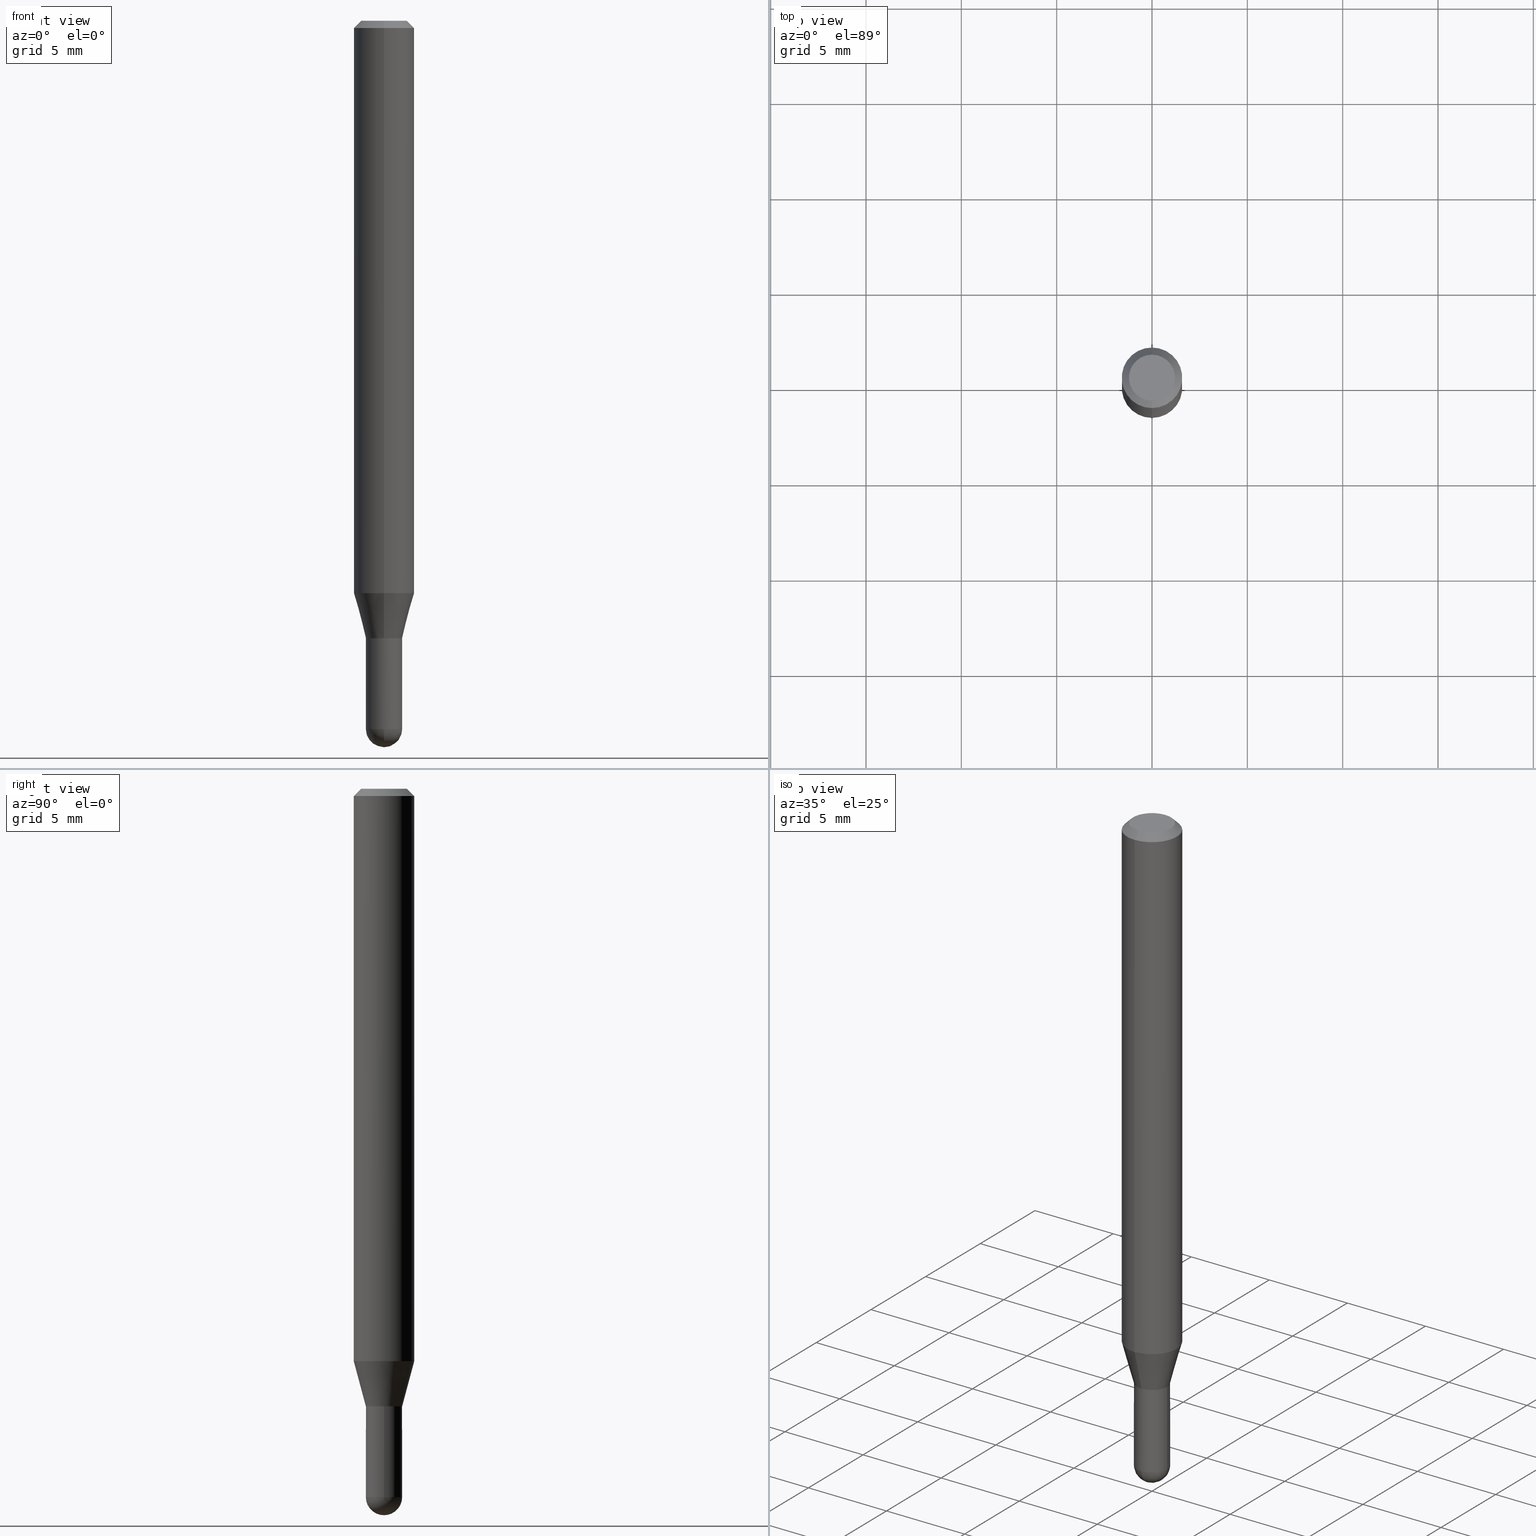
[diagram: canonical four-view strip — front | top / right | iso, engineering-drawing reading convention]
A machine part, canonical four-view strip (front | top / right | iso — engineering-drawing reading convention). The complete STEP part file that produces these views, byte-faithful:
ISO-10303-21;
HEADER;
FILE_DESCRIPTION (( 'STEP AP203' ),
    '1' );
FILE_NAME ('01487.STEP',
    '2024-03-07T21:35:48',
    ( '' ),
    ( '' ),
    'SwSTEP 2.0',
    'SolidWorks 2023',
    '' );
FILE_SCHEMA (( 'CONFIG_CONTROL_DESIGN' ));
ENDSEC;

DATA;
#1 = ORIENTED_EDGE ( 'NONE', *, *, #110, .T. ) ;
#2 = EDGE_CURVE ( 'NONE', #95, #86, #20, .T. ) ;
#3 = AXIS2_PLACEMENT_3D ( 'NONE', #383, #27, #183 ) ;
#4 = AXIS2_PLACEMENT_3D ( 'NONE', #172, #415, #341 ) ;
#5 = VERTEX_POINT ( 'NONE', #68 ) ;
#6 = COORDINATED_UNIVERSAL_TIME_OFFSET ( 5, 0, .BEHIND. ) ;
#7 = APPLICATION_CONTEXT ( 'configuration controlled 3d designs of mechanical parts and assemblies' ) ;
#8 = DIRECTION ( 'NONE',  ( -2.445363330842566879E-29, 3.491632385536988923E-15, 1.000000000000000000 ) ) ;
#9 = ORIENTED_EDGE ( 'NONE', *, *, #436, .T. ) ;
#10 = CYLINDRICAL_SURFACE ( 'NONE', #400, 0.03749999999999991535 ) ;
#11 = EDGE_LOOP ( 'NONE', ( #362, #1, #237, #118 ) ) ;
#12 = AXIS2_PLACEMENT_3D ( 'NONE', #194, #228, #355 ) ;
#13 = PRODUCT_RELATED_PRODUCT_CATEGORY ( 'detail', '', ( #202 ) ) ;
#14 = ORIENTED_EDGE ( 'NONE', *, *, #339, .T. ) ;
#15 = FACE_OUTER_BOUND ( 'NONE', #323, .T. ) ;
#16 = DIRECTION ( 'NONE',  ( -6.982962677686265922E-15, -1.000000000000000000, 3.483106191921935554E-15 ) ) ;
#17 = ORIENTED_EDGE ( 'NONE', *, *, #422, .T. ) ;
#18 = CC_DESIGN_PERSON_AND_ORGANIZATION_ASSIGNMENT ( #198, #473, ( #193 ) ) ;
#19 = DIRECTION ( 'NONE',  ( 1.000000000000000000, -6.982962677686268288E-15, 0.000000000000000000 ) ) ;
#20 = CIRCLE ( 'NONE', #343, 0.03749999999999999861 ) ;
#21 = CIRCLE ( 'NONE', #241, 0.06250000000000000000 ) ;
#22 = CARTESIAN_POINT ( 'NONE',  ( 4.364351673553919652E-16, 0.06249999999999995143, -0.01500000000000022669 ) ) ;
#23 = CARTESIAN_POINT ( 'NONE',  ( 3.576498129045762161E-29, -5.106291458058100676E-15, -1.462500000000000133 ) ) ;
#24 = CARTESIAN_POINT ( 'NONE',  ( 3.576498129045762161E-29, -5.106291458058100676E-15, -1.462500000000000133 ) ) ;
#25 = DIRECTION ( 'NONE',  ( -2.445468806185136597E-29, 3.491481338843145583E-15, 1.000000000000000000 ) ) ;
#26 = EDGE_CURVE ( 'NONE', #5, #288, #412, .T. ) ;
#27 = DIRECTION ( 'NONE',  ( -2.445363330842566879E-29, 3.491632385536988923E-15, 1.000000000000000000 ) ) ;
#28 = DIRECTION ( 'NONE',  ( -6.982962677686265922E-15, -1.000000000000000000, 4.370956789862821150E-15 ) ) ;
#29 = CIRCLE ( 'NONE', #318, 0.03749999999999991535 ) ;
#30 = CARTESIAN_POINT ( 'NONE',  ( 3.316907271900976096E-16, 0.04749999999999999362, -1.702791107499437497E-16 ) ) ;
#31 = CIRCLE ( 'NONE', #328, 0.03749999999999999861 ) ;
#32 = SECURITY_CLASSIFICATION ( '', '', #443 ) ;
#33 = DIRECTION ( 'NONE',  ( -2.445363330842566879E-29, 3.491632385536988923E-15, 1.000000000000000000 ) ) ;
#34 = CARTESIAN_POINT ( 'NONE',  ( 2.889682741982522201E-29, -4.126057554955246622E-15, -1.181698729810781057 ) ) ;
#35 = LINE ( 'NONE', #223, #352 ) ;
#36 = PLANE ( 'NONE',  #184 ) ;
#37 = ADVANCED_FACE ( 'NONE', ( #214 ), #175, .T. ) ;
#38 = LINE ( 'NONE', #351, #88 ) ;
#39 = CARTESIAN_POINT ( 'NONE',  ( 3.552713678800798922E-16, 0.03749999999999546058, -1.275000000000000133 ) ) ;
#40 = AXIS2_PLACEMENT_3D ( 'NONE', #24, #130, #66 ) ;
#41 = AXIS2_PLACEMENT_3D ( 'NONE', #273, #426, #100 ) ;
#42 = CYLINDRICAL_SURFACE ( 'NONE', #334, 0.03749999999999991535 ) ;
#43 = CARTESIAN_POINT ( 'NONE',  ( 3.117838246824272799E-29, -4.451831291559661005E-15, -1.275000000000000133 ) ) ;
#44 = DIRECTION ( 'NONE',  ( -2.445468806185136877E-29, 3.491481338843145188E-15, 1.000000000000000000 ) ) ;
#45 = EDGE_CURVE ( 'NONE', #86, #401, #138, .T. ) ;
#46 = DIRECTION ( 'NONE',  ( -1.807323732225379443E-15, -0.2588190451025252359, 0.9659258262890670910 ) ) ;
#47 = VERTEX_POINT ( 'NONE', #495 ) ;
#48 = APPROVAL_STATUS ( 'not_yet_approved' ) ;
#49 = AXIS2_PLACEMENT_3D ( 'NONE', #380, #56, #453 ) ;
#50 = VERTEX_POINT ( 'NONE', #179 ) ;
#51 = PERSON_AND_ORGANIZATION_ROLE ( 'creator' ) ;
#52 = EDGE_LOOP ( 'NONE', ( #247, #455, #101, #321 ) ) ;
#53 = PERSON ( 'UNSPECIFIED', 'UNSPECIFIED', 'UNSPECIFIED', ('UNSPECIFIED'), ('UNSPECIFIED'), ('UNSPECIFIED') ) ;
#54 = ORIENTED_EDGE ( 'NONE', *, *, #45, .T. ) ;
#55 = ORIENTED_EDGE ( 'NONE', *, *, #144, .F. ) ;
#56 = DIRECTION ( 'NONE',  ( -2.445468806185136597E-29, 3.491481338843145583E-15, 1.000000000000000000 ) ) ;
#57 = ADVANCED_FACE ( 'NONE', ( #15 ), #420, .F. ) ;
#58 = EDGE_LOOP ( 'NONE', ( #444, #9, #136, #452 ) ) ;
#59 = DIRECTION ( 'NONE',  ( 6.982962677686265922E-15, 1.000000000000000000, -3.483106191921935554E-15 ) ) ;
#60 = DIRECTION ( 'NONE',  ( -2.445468806185136597E-29, 3.491481338843145583E-15, 1.000000000000000000 ) ) ;
#61 = DIRECTION ( 'NONE',  ( -6.982962677686265133E-15, -1.000000000000000000, 0.000000000000000000 ) ) ;
#62 = AXIS2_PLACEMENT_3D ( 'NONE', #441, #243, #205 ) ;
#63 = DIRECTION ( 'NONE',  ( 4.937700262164548042E-15, 0.7071067811865451302, -0.7071067811865499042 ) ) ;
#64 = CC_DESIGN_APPROVAL ( #467, ( #32 ) ) ;
#65 = ADVANCED_FACE ( 'NONE', ( #456 ), #408, .T. ) ;
#66 = DIRECTION ( 'NONE',  ( 1.000000000000000000, -6.982962677686268288E-15, 0.000000000000000000 ) ) ;
#67 = DIRECTION ( 'NONE',  ( -2.445363330842566879E-29, 3.491632385536988923E-15, 1.000000000000000000 ) ) ;
#68 = CARTESIAN_POINT ( 'NONE',  ( 3.840629472727447874E-16, 0.04749999999999999362, -1.747056831868805136E-16 ) ) ;
#69 = DIRECTION ( 'NONE',  ( -6.982962677686265133E-15, -1.000000000000000000, 0.000000000000000000 ) ) ;
#70 = AXIS2_PLACEMENT_3D ( 'NONE', #73, #33, #462 ) ;
#71 = EDGE_CURVE ( 'NONE', #401, #409, #374, .T. ) ;
#72 = FACE_OUTER_BOUND ( 'NONE', #153, .T. ) ;
#73 = CARTESIAN_POINT ( 'NONE',  ( 3.668044996263852701E-31, -5.237448578305486515E-17, -0.01500000000000000812 ) ) ;
#74 = DIRECTION ( 'NONE',  ( 2.445363330842566599E-29, -3.491632385536988923E-15, -1.000000000000000000 ) ) ;
#75 = VERTEX_POINT ( 'NONE', #299 ) ;
#76 = CIRCLE ( 'NONE', #410, 0.03749999999999992228 ) ;
#77 = EDGE_CURVE ( 'NONE', #264, #50, #123, .T. ) ;
#78 = APPLICATION_PROTOCOL_DEFINITION ( 'international standard', 'config_control_design', 1994, #437 ) ;
#79 = DATE_TIME_ROLE ( 'creation_date' ) ;
#80 = VERTEX_POINT ( 'NONE', #133 ) ;
#81 = AXIS2_PLACEMENT_3D ( 'NONE', #90, #213, #59 ) ;
#82 = ORIENTED_EDGE ( 'NONE', *, *, #26, .F. ) ;
#83 = ADVANCED_FACE ( 'NONE', ( #222 ), #431, .T. ) ;
#84 = EDGE_LOOP ( 'NONE', ( #212, #398, #429, #91, #182 ) ) ;
#85 = DIRECTION ( 'NONE',  ( -2.445363330842566879E-29, 3.491632385536988923E-15, 1.000000000000000000 ) ) ;
#86 = VERTEX_POINT ( 'NONE', #146 ) ;
#87 = CIRCLE ( 'NONE', #417, 0.06250000000000000000 ) ;
#88 = VECTOR ( 'NONE', #508, 39.37007874015748143 ) ;
#89 = ADVANCED_FACE ( 'NONE', ( #111 ), #371, .T. ) ;
#90 = CARTESIAN_POINT ( 'NONE',  ( 3.668044996263852701E-31, -5.237448578305486515E-17, -0.01500000000000000812 ) ) ;
#91 = ORIENTED_EDGE ( 'NONE', *, *, #71, .F. ) ;
#92 = CARTESIAN_POINT ( 'NONE',  ( 3.668044996263852701E-31, -5.237448578305486515E-17, -0.01500000000000000812 ) ) ;
#93 = CARTESIAN_POINT ( 'NONE',  ( 3.573291255461339313E-29, -5.110883883554903875E-15, -1.462500000000000133 ) ) ;
#94 = DIRECTION ( 'NONE',  ( -2.445468806185136597E-29, 3.491481338843145583E-15, 1.000000000000000000 ) ) ;
#95 = VERTEX_POINT ( 'NONE', #502 ) ;
#96 = CIRCLE ( 'NONE', #62, 0.03749999999999991535 ) ;
#97 = CONICAL_SURFACE ( 'NONE', #4, 0.03749999999999991535, 0.2617993877991575680 ) ;
#98 = ORIENTED_EDGE ( 'NONE', *, *, #2, .T. ) ;
#99 = LOCAL_TIME ( 16, 35, 48.00000000000000000, #253 ) ;
#100 = DIRECTION ( 'NONE',  ( -6.982962677686265922E-15, -1.000000000000000000, 3.491632385536988923E-15 ) ) ;
#101 = ORIENTED_EDGE ( 'NONE', *, *, #331, .F. ) ;
#102 = CARTESIAN_POINT ( 'NONE',  ( -2.618611004132032007E-16, -0.03750000000000437012, -1.275000000000000133 ) ) ;
#103 = LINE ( 'NONE', #466, #500 ) ;
#104 = CC_DESIGN_PERSON_AND_ORGANIZATION_ASSIGNMENT ( #358, #512, ( #202 ) ) ;
#105 = VECTOR ( 'NONE', #292, 39.37007874015748143 ) ;
#106 = FACE_OUTER_BOUND ( 'NONE', #372, .T. ) ;
#107 = DIRECTION ( 'NONE',  ( -2.445363330842566879E-29, 3.491632385536988923E-15, 1.000000000000000000 ) ) ;
#108 = CARTESIAN_POINT ( 'NONE',  ( 2.164915583720718990E-46, -3.091192735546762103E-32, -8.853144873873535665E-18 ) ) ;
#109 = DIRECTION ( 'NONE',  ( 1.000000000000000000, -7.105427357601001070E-15, 4.926315508542082329E-29 ) ) ;
#110 = EDGE_CURVE ( 'NONE', #50, #264, #149, .T. ) ;
#111 = FACE_OUTER_BOUND ( 'NONE', #510, .T. ) ;
#112 = AXIS2_PLACEMENT_3D ( 'NONE', #93, #220, #486 ) ;
#113 = AXIS2_PLACEMENT_3D ( 'NONE', #504, #145, #232 ) ;
#114 = CARTESIAN_POINT ( 'NONE',  ( 0.000000000000000000, 0.000000000000000000, 0.000000000000000000 ) ) ;
#115 = LINE ( 'NONE', #235, #156 ) ;
#116 = ORIENTED_EDGE ( 'NONE', *, *, #246, .T. ) ;
#117 = PERSON_AND_ORGANIZATION ( #53, #124 ) ;
#118 = ORIENTED_EDGE ( 'NONE', *, *, #474, .F. ) ;
#119 = APPROVAL_DATE_TIME ( #476, #256 ) ;
#120 = CC_DESIGN_PERSON_AND_ORGANIZATION_ASSIGNMENT ( #231, #391, ( #32 ) ) ;
#121 = ORIENTED_EDGE ( 'NONE', *, *, #110, .F. ) ;
#122 = PERSON_AND_ORGANIZATION ( #53, #124 ) ;
#123 = CIRCLE ( 'NONE', #386, 0.03699999999999999817 ) ;
#124 = ORGANIZATION ( 'UNSPECIFIED', 'UNSPECIFIED', '' ) ;
#125 = CARTESIAN_POINT ( 'NONE',  ( 0.000000000000000000, 0.000000000000000000, 0.000000000000000000 ) ) ;
#126 = ORIENTED_EDGE ( 'NONE', *, *, #224, .F. ) ;
#127 = DIRECTION ( 'NONE',  ( -2.445363330842566879E-29, 3.491632385536988923E-15, 1.000000000000000000 ) ) ;
#128 = ORIENTED_EDGE ( 'NONE', *, *, #26, .T. ) ;
#129 = FACE_OUTER_BOUND ( 'NONE', #342, .T. ) ;
#130 = DIRECTION ( 'NONE',  ( -2.445468806185136597E-29, 3.491481338843145583E-15, 1.000000000000000000 ) ) ;
#131 = AXIS2_PLACEMENT_3D ( 'NONE', #108, #345, #501 ) ;
#132 = CC_DESIGN_SECURITY_CLASSIFICATION ( #32, ( #301 ) ) ;
#133 = CARTESIAN_POINT ( 'NONE',  ( 2.664535259100738967E-16, 0.03749999999999498179, -1.462500000000000133 ) ) ;
#134 = DIRECTION ( 'NONE',  ( -2.445363330842566879E-29, 3.491632385536988923E-15, 1.000000000000000000 ) ) ;
#135 = CARTESIAN_POINT ( 'NONE',  ( 0.03749999999999999861, -2.618611004132350016E-16, 1.828566290923475922E-30 ) ) ;
#136 = ORIENTED_EDGE ( 'NONE', *, *, #474, .T. ) ;
#137 = CYLINDRICAL_SURFACE ( 'NONE', #49, 0.03749999999999999861 ) ;
#138 = CIRCLE ( 'NONE', #40, 0.03749999999999999861 ) ;
#139 = AXIS2_PLACEMENT_3D ( 'NONE', #291, #134, #411 ) ;
#140 = ORIENTED_EDGE ( 'NONE', *, *, #272, .T. ) ;
#141 = DIRECTION ( 'NONE',  ( -2.445363330842566879E-29, 3.491632385536988923E-15, 1.000000000000000000 ) ) ;
#142 = CARTESIAN_POINT ( 'NONE',  ( -2.618611004132344100E-16, -0.03749999999999991535, 1.309362144576368085E-16 ) ) ;
#143 = VERTEX_POINT ( 'NONE', #39 ) ;
#144 = EDGE_CURVE ( 'NONE', #216, #80, #218, .T. ) ;
#145 = DIRECTION ( 'NONE',  ( 1.000000000000000000, -6.982962677686265922E-15, 4.883557194083112901E-29 ) ) ;
#146 = CARTESIAN_POINT ( 'NONE',  ( -2.618611004131998480E-16, -0.03750000000000520278, -1.462500000000000133 ) ) ;
#147 = VERTEX_POINT ( 'NONE', #314 ) ;
#148 = CARTESIAN_POINT ( 'NONE',  ( 2.664535259100369189E-16, 0.03749999999999991535, -1.309362144576368085E-16 ) ) ;
#149 = CIRCLE ( 'NONE', #439, 0.03699999999999999817 ) ;
#150 = CARTESIAN_POINT ( 'NONE',  ( 3.668044996263852701E-31, -5.237448578305486515E-17, -0.01500000000000000812 ) ) ;
#151 = CARTESIAN_POINT ( 'NONE',  ( 0.03749999999999999861, -5.040826182954790742E-15, -1.462500000000000133 ) ) ;
#152 = ADVANCED_FACE ( 'NONE', ( #106 ), #36, .F. ) ;
#153 = EDGE_LOOP ( 'NONE', ( #274, #329, #295, #313 ) ) ;
#154 = DIRECTION ( 'NONE',  ( -2.445363330842566879E-29, 3.491632385536988923E-15, 1.000000000000000000 ) ) ;
#155 = ORIENTED_EDGE ( 'NONE', *, *, #278, .F. ) ;
#156 = VECTOR ( 'NONE', #46, 39.37007874015748143 ) ;
#157 = VERTEX_POINT ( 'NONE', #192 ) ;
#158 = CIRCLE ( 'NONE', #360, 0.03749999999999999861 ) ;
#159 = CALENDAR_DATE ( 2024, 7, 3 ) ;
#160 = ORIENTED_EDGE ( 'NONE', *, *, #45, .F. ) ;
#161 = EDGE_CURVE ( 'NONE', #434, #464, #311, .T. ) ;
#162 = SHAPE_DEFINITION_REPRESENTATION ( #261, #315 ) ;
#163 = DIRECTION ( 'NONE',  ( -6.982962677686265922E-15, -1.000000000000000000, 3.491632385536988923E-15 ) ) ;
#164 = ORIENTED_EDGE ( 'NONE', *, *, #368, .F. ) ;
#165 = COORDINATED_UNIVERSAL_TIME_OFFSET ( 5, 0, .BEHIND. ) ;
#166 = DIRECTION ( 'NONE',  ( -6.982962677686265922E-15, -1.000000000000000000, 4.370956789862821150E-15 ) ) ;
#167 = ORIENTED_EDGE ( 'NONE', *, *, #509, .T. ) ;
#168 = AXIS2_PLACEMENT_3D ( 'NONE', #336, #257, #489 ) ;
#169 = CIRCLE ( 'NONE', #131, 0.04749999999999999362 ) ;
#170 = EDGE_CURVE ( 'NONE', #434, #143, #29, .T. ) ;
#171 = ORIENTED_EDGE ( 'NONE', *, *, #427, .F. ) ;
#172 = CARTESIAN_POINT ( 'NONE',  ( 3.117838246824272799E-29, -4.451831291559661005E-15, -1.275000000000000133 ) ) ;
#173 = DIRECTION ( 'NONE',  ( -6.982962677686265133E-15, -1.000000000000000000, 0.000000000000000000 ) ) ;
#174 = CARTESIAN_POINT ( 'NONE',  ( 4.440892098500915082E-16, 0.06249999999999993755, -0.01500000000000022669 ) ) ;
#175 = SPHERICAL_SURFACE ( 'NONE', #112, 0.03750000000000017902 ) ;
#176 = CLOSED_SHELL ( 'NONE', ( #460, #445, #57, #37, #293 ) ) ;
#177 = VECTOR ( 'NONE', #390, 39.37007874015748143 ) ;
#178 = DIRECTION ( 'NONE',  ( -2.445363330842566599E-29, 3.491632385536988923E-15, 1.000000000000000000 ) ) ;
#179 = CARTESIAN_POINT ( 'NONE',  ( 2.646771690706681720E-16, 0.03699999999999554340, -1.275000000000000133 ) ) ;
#180 = ADVANCED_FACE ( 'NONE', ( #356 ), #506, .T. ) ;
#181 = DIRECTION ( 'NONE',  ( -2.445468806185136597E-29, 3.491481338843145583E-15, 1.000000000000000000 ) ) ;
#182 = ORIENTED_EDGE ( 'NONE', *, *, #379, .T. ) ;
#183 = DIRECTION ( 'NONE',  ( -6.982962677686265133E-15, -1.000000000000000000, 0.000000000000000000 ) ) ;
#184 = AXIS2_PLACEMENT_3D ( 'NONE', #30, #74, #353 ) ;
#185 = DIRECTION ( 'NONE',  ( 5.024295867788190974E-15, 0.7071067811865681119, 0.7071067811865270336 ) ) ;
#186 = CIRCLE ( 'NONE', #226, 0.03749999999999992228 ) ;
#187 = CIRCLE ( 'NONE', #251, 0.03750000000000017902 ) ;
#188 = DIRECTION ( 'NONE',  ( -2.445363330842566879E-29, 3.491632385536988923E-15, 1.000000000000000000 ) ) ;
#189 = EDGE_CURVE ( 'NONE', #75, #288, #385, .T. ) ;
#190 = CARTESIAN_POINT ( 'NONE',  ( 0.03749999999999999861, -4.713499807438246596E-15, -1.275000000000000133 ) ) ;
#191 = DIRECTION ( 'NONE',  ( -1.000000000000000000, 6.982962677686265922E-15, -4.883557194083112340E-29 ) ) ;
#192 = CARTESIAN_POINT ( 'NONE',  ( -4.364351673553630239E-16, -0.06250000000000416334, -1.181698729810780613 ) ) ;
#193 = PRODUCT_DEFINITION ( 'UNKNOWN', '', #301, #396 ) ;
#194 = CARTESIAN_POINT ( 'NONE',  ( 0.000000000000000000, 0.000000000000000000, 0.000000000000000000 ) ) ;
#195 = LOCAL_TIME ( 16, 35, 48.00000000000000000, #435 ) ;
#196 = FACE_OUTER_BOUND ( 'NONE', #84, .T. ) ;
#197 = DIRECTION ( 'NONE',  ( -6.982962677686266711E-15, -1.000000000000000000, 0.000000000000000000 ) ) ;
#198 = PERSON_AND_ORGANIZATION ( #53, #124 ) ;
#199 = FACE_OUTER_BOUND ( 'NONE', #316, .T. ) ;
#200 = EDGE_LOOP ( 'NONE', ( #405, #98, #54, #416, #285 ) ) ;
#201 = EDGE_CURVE ( 'NONE', #157, #75, #87, .T. ) ;
#202 = PRODUCT ( '01487', '01487', '', ( #242 ) ) ;
#203 = CARTESIAN_POINT ( 'NONE',  ( -0.03749999999999999861, 2.664535259100375598E-16, -1.844600658845589808E-30 ) ) ;
#204 = ORIENTED_EDGE ( 'NONE', *, *, #284, .T. ) ;
#205 = DIRECTION ( 'NONE',  ( -6.982962677686266711E-15, -1.000000000000000000, 0.000000000000000000 ) ) ;
#206 = EDGE_LOOP ( 'NONE', ( #305, #140, #17, #82 ) ) ;
#207 = DATE_TIME_ROLE ( 'classification_date' ) ;
#208 = EDGE_CURVE ( 'NONE', #95, #47, #289, .T. ) ;
#209 = ORIENTED_EDGE ( 'NONE', *, *, #77, .F. ) ;
#210 = AXIS2_PLACEMENT_3D ( 'NONE', #150, #468, #424 ) ;
#211 = CONICAL_SURFACE ( 'NONE', #81, 0.06250000000000000000, 0.7853981633974483900 ) ;
#212 = ORIENTED_EDGE ( 'NONE', *, *, #368, .T. ) ;
#213 = DIRECTION ( 'NONE',  ( 2.445363330842566879E-29, -3.491632385536988923E-15, -1.000000000000000000 ) ) ;
#214 = FACE_OUTER_BOUND ( 'NONE', #395, .T. ) ;
#215 = DIRECTION ( 'NONE',  ( -6.982962677686265922E-15, -1.000000000000000000, 3.491632385536988923E-15 ) ) ;
#216 = VERTEX_POINT ( 'NONE', #239 ) ;
#217 = CC_DESIGN_PERSON_AND_ORGANIZATION_ASSIGNMENT ( #122, #287, ( #301 ) ) ;
#218 = CIRCLE ( 'NONE', #498, 0.03750000000000017902 ) ;
#219 = DIRECTION ( 'NONE',  ( -2.445363330842566879E-29, 3.491632385536988923E-15, 1.000000000000000000 ) ) ;
#220 = DIRECTION ( 'NONE',  ( 1.000000000000000000, -6.982962677686265922E-15, 4.883557194083112901E-29 ) ) ;
#221 = CARTESIAN_POINT ( 'NONE',  ( -2.583696190743606373E-16, -0.03700000000000444600, -1.275000000000000133 ) ) ;
#222 = FACE_OUTER_BOUND ( 'NONE', #11, .T. ) ;
#223 = CARTESIAN_POINT ( 'NONE',  ( 2.629008122312681665E-16, 0.03699999999999554340, -1.275000000000000133 ) ) ;
#224 = EDGE_CURVE ( 'NONE', #434, #157, #115, .T. ) ;
#225 =( LENGTH_UNIT ( ) NAMED_UNIT ( * ) SI_UNIT ( $, .METRE. ) );
#226 = AXIS2_PLACEMENT_3D ( 'NONE', #263, #107, #306 ) ;
#227 = DIRECTION ( 'NONE',  ( -2.445363330842566879E-29, 3.491632385536988923E-15, 1.000000000000000000 ) ) ;
#228 = DIRECTION ( 'NONE',  ( -2.445468806185136597E-29, 3.491481338843145583E-15, 1.000000000000000000 ) ) ;
#229 = LINE ( 'NONE', #148, #319 ) ;
#230 = CARTESIAN_POINT ( 'NONE',  ( 3.117838246824272799E-29, -4.451831291559661005E-15, -1.275000000000000133 ) ) ;
#231 = PERSON_AND_ORGANIZATION ( #53, #124 ) ;
#232 = DIRECTION ( 'NONE',  ( -6.982962677686265922E-15, -1.000000000000000000, 0.000000000000000000 ) ) ;
#233 = CC_DESIGN_APPROVAL ( #419, ( #193 ) ) ;
#234 = MANIFOLD_SOLID_BREP ( 'Body-Move/Copy2[1]', #176 ) ;
#235 = CARTESIAN_POINT ( 'NONE',  ( -2.618611004132032007E-16, -0.03750000000000437012, -1.275000000000000133 ) ) ;
#236 = ADVANCED_FACE ( 'NONE', ( #199 ), #361, .T. ) ;
#237 = ORIENTED_EDGE ( 'NONE', *, *, #491, .T. ) ;
#238 = PERSON_AND_ORGANIZATION ( #53, #124 ) ;
#239 = CARTESIAN_POINT ( 'NONE',  ( 3.663392898901070905E-29, -5.244110646509923764E-15, -1.500000000000000222 ) ) ;
#240 = EDGE_LOOP ( 'NONE', ( #438, #483, #477, #126 ) ) ;
#241 = AXIS2_PLACEMENT_3D ( 'NONE', #346, #141, #28 ) ;
#242 = MECHANICAL_CONTEXT ( 'NONE', #437, 'mechanical' ) ;
#243 = DIRECTION ( 'NONE',  ( -2.445363330842566879E-29, 3.491632385536988923E-15, 1.000000000000000000 ) ) ;
#244 = ORIENTED_EDGE ( 'NONE', *, *, #144, .T. ) ;
#245 = PERSON_AND_ORGANIZATION ( #53, #124 ) ;
#246 = EDGE_CURVE ( 'NONE', #143, #434, #96, .T. ) ;
#247 = ORIENTED_EDGE ( 'NONE', *, *, #77, .T. ) ;
#248 = PLANE ( 'NONE',  #259 ) ;
#249 = ORIENTED_EDGE ( 'NONE', *, *, #189, .F. ) ;
#250 = VECTOR ( 'NONE', #394, 39.37007874015748143 ) ;
#251 = AXIS2_PLACEMENT_3D ( 'NONE', #428, #191, #421 ) ;
#252 = ORIENTED_EDGE ( 'NONE', *, *, #454, .T. ) ;
#253 = COORDINATED_UNIVERSAL_TIME_OFFSET ( 5, 0, .BEHIND. ) ;
#254 = MANIFOLD_SOLID_BREP ( 'Body-Move/Copy2[2]', #267 ) ;
#255 = FACE_OUTER_BOUND ( 'NONE', #200, .T. ) ;
#256 = APPROVAL ( #48, 'UNSPECIFIED' ) ;
#257 = DIRECTION ( 'NONE',  ( 2.438088387897960049E-29, -3.491481338843145188E-15, -1.000000000000000000 ) ) ;
#258 = FACE_OUTER_BOUND ( 'NONE', #240, .T. ) ;
#259 = AXIS2_PLACEMENT_3D ( 'NONE', #332, #178, #215 ) ;
#260 = CARTESIAN_POINT ( 'NONE',  ( 3.117838246824272799E-29, -4.451831291559661005E-15, -1.275000000000000133 ) ) ;
#261 = PRODUCT_DEFINITION_SHAPE ( 'NONE', 'NONE',  #193 ) ;
#262 = ADVANCED_FACE ( 'NONE', ( #369 ), #10, .F. ) ;
#263 = CARTESIAN_POINT ( 'NONE',  ( 3.116615565158852081E-29, -4.450085475366893413E-15, -1.274500000000000188 ) ) ;
#264 = VERTEX_POINT ( 'NONE', #221 ) ;
#265 = LENGTH_MEASURE_WITH_UNIT ( LENGTH_MEASURE( 0.02539999999999999897 ), #225 );
#266 = CARTESIAN_POINT ( 'NONE',  ( -2.618611004132041375E-16, -0.03750000000000450195, -1.274500000000000188 ) ) ;
#267 = CLOSED_SHELL ( 'NONE', ( #262, #65, #317, #402, #357, #180, #236, #89, #152, #300, #83, #406 ) ) ;
#268 = CYLINDRICAL_SURFACE ( 'NONE', #41, 0.06250000000000000000 ) ;
#269 = CIRCLE ( 'NONE', #432, 0.03749999999999999861 ) ;
#270 =( NAMED_UNIT ( * ) SI_UNIT ( $, .STERADIAN. ) SOLID_ANGLE_UNIT ( ) );
#271 = LINE ( 'NONE', #505, #177 ) ;
#272 = EDGE_CURVE ( 'NONE', #147, #340, #494, .T. ) ;
#273 = CARTESIAN_POINT ( 'NONE',  ( 0.000000000000000000, 0.000000000000000000, 0.000000000000000000 ) ) ;
#274 = ORIENTED_EDGE ( 'NONE', *, *, #436, .F. ) ;
#275 = CARTESIAN_POINT ( 'NONE',  ( 4.440892098500625669E-16, 0.06250000000000000000, -2.182270240960618077E-16 ) ) ;
#276 = APPROVAL_PERSON_ORGANIZATION ( #238, #256, #363 ) ;
#277 = DIRECTION ( 'NONE',  ( 1.000000000000000000, 0.000000000000000000, 0.000000000000000000 ) ) ;
#278 = EDGE_CURVE ( 'NONE', #288, #340, #286, .T. ) ;
#279 = DIMENSIONAL_EXPONENTS ( 1.000000000000000000, 0.000000000000000000, 0.000000000000000000, 0.000000000000000000, 0.000000000000000000, 0.000000000000000000, 0.000000000000000000 ) ;
#280 = ORIENTED_EDGE ( 'NONE', *, *, #2, .F. ) ;
#281 = APPROVAL_DATE_TIME ( #322, #419 ) ;
#282 = ORIENTED_EDGE ( 'NONE', *, *, #388, .F. ) ;
#283 = APPROVAL_DATE_TIME ( #480, #467 ) ;
#284 = EDGE_CURVE ( 'NONE', #147, #5, #488, .T. ) ;
#285 = ORIENTED_EDGE ( 'NONE', *, *, #339, .F. ) ;
#286 = CIRCLE ( 'NONE', #309, 0.06250000000000000000 ) ;
#287 = PERSON_AND_ORGANIZATION_ROLE ( 'design_supplier' ) ;
#288 = VERTEX_POINT ( 'NONE', #174 ) ;
#289 = LINE ( 'NONE', #203, #487 ) ;
#290 = EDGE_LOOP ( 'NONE', ( #459, #425, #327, #370 ) ) ;
#291 = CARTESIAN_POINT ( 'NONE',  ( 2.164915583720718990E-46, -3.091192735546762103E-32, -8.853144873873535665E-18 ) ) ;
#292 = DIRECTION ( 'NONE',  ( -2.445468806185136877E-29, 3.491481338843145188E-15, 1.000000000000000000 ) ) ;
#293 = ADVANCED_FACE ( 'NONE', ( #255 ), #137, .T. ) ;
#294 = DIRECTION ( 'NONE',  ( -2.445363330842566879E-29, 3.491632385536988923E-15, 1.000000000000000000 ) ) ;
#295 = ORIENTED_EDGE ( 'NONE', *, *, #161, .T. ) ;
#296 = CALENDAR_DATE ( 2024, 7, 3 ) ;
#297 = DIRECTION ( 'NONE',  ( 1.000000000000000000, -6.982962677686268288E-15, 0.000000000000000000 ) ) ;
#298 = CARTESIAN_POINT ( 'NONE',  ( 3.117972727886049049E-29, -4.451638707025011594E-15, -1.275000000000000133 ) ) ;
#299 = CARTESIAN_POINT ( 'NONE',  ( 4.440892098500911138E-16, 0.06249999999999584360, -1.181698729810781279 ) ) ;
#300 = ADVANCED_FACE ( 'NONE', ( #129 ), #248, .F. ) ;
#301 = PRODUCT_DEFINITION_FORMATION_WITH_SPECIFIED_SOURCE ( 'ANY', '', #202, .NOT_KNOWN. ) ;
#302 = DIRECTION ( 'NONE',  ( 1.000000000000000000, -6.982962677686268288E-15, 0.000000000000000000 ) ) ;
#303 = DIRECTION ( 'NONE',  ( -2.445363330842566599E-29, 3.491632385536988923E-15, 1.000000000000000000 ) ) ;
#304 = DIRECTION ( 'NONE',  ( -2.445363330842566599E-29, 3.491632385536988923E-15, 1.000000000000000000 ) ) ;
#305 = ORIENTED_EDGE ( 'NONE', *, *, #284, .F. ) ;
#306 = DIRECTION ( 'NONE',  ( -6.982962677686265133E-15, -1.000000000000000000, 0.000000000000000000 ) ) ;
#307 = AXIS2_PLACEMENT_3D ( 'NONE', #260, #493, #173 ) ;
#308 = CYLINDRICAL_SURFACE ( 'NONE', #12, 0.03749999999999999861 ) ;
#309 = AXIS2_PLACEMENT_3D ( 'NONE', #92, #294, #16 ) ;
#310 = CC_DESIGN_PERSON_AND_ORGANIZATION_ASSIGNMENT ( #403, #51, ( #301 ) ) ;
#311 = LINE ( 'NONE', #142, #250 ) ;
#312 = CARTESIAN_POINT ( 'NONE',  ( 0.000000000000000000, 0.000000000000000000, 0.000000000000000000 ) ) ;
#313 = ORIENTED_EDGE ( 'NONE', *, *, #331, .T. ) ;
#314 = CARTESIAN_POINT ( 'NONE',  ( -3.773273898774340269E-16, -0.04749999999999999362, 1.569993934391334331E-16 ) ) ;
#315 = ADVANCED_BREP_SHAPE_REPRESENTATION ( '01487', ( #234, #254, #507 ), #378 ) ;
#316 = EDGE_LOOP ( 'NONE', ( #249, #472, #485, #155 ) ) ;
#317 = ADVANCED_FACE ( 'NONE', ( #451 ), #211, .T. ) ;
#318 = AXIS2_PLACEMENT_3D ( 'NONE', #43, #227, #197 ) ;
#319 = VECTOR ( 'NONE', #303, 39.37007874015748143 ) ;
#320 = LOCAL_TIME ( 16, 35, 48.00000000000000000, #364 ) ;
#321 = ORIENTED_EDGE ( 'NONE', *, *, #491, .F. ) ;
#322 = DATE_AND_TIME ( #159, #457 ) ;
#323 = EDGE_LOOP ( 'NONE', ( #442, #14 ) ) ;
#324 = CALENDAR_DATE ( 2024, 7, 3 ) ;
#325 = APPROVAL_STATUS ( 'not_yet_approved' ) ;
#326 = CC_DESIGN_DATE_AND_TIME_ASSIGNMENT ( #337, #207, ( #32 ) ) ;
#327 = ORIENTED_EDGE ( 'NONE', *, *, #422, .F. ) ;
#328 = AXIS2_PLACEMENT_3D ( 'NONE', #23, #181, #382 ) ;
#329 = ORIENTED_EDGE ( 'NONE', *, *, #170, .F. ) ;
#330 = ORIENTED_EDGE ( 'NONE', *, *, #224, .T. ) ;
#331 = EDGE_CURVE ( 'NONE', #464, #448, #76, .T. ) ;
#332 = CARTESIAN_POINT ( 'NONE',  ( 3.117838246824272799E-29, -4.451831291559661005E-15, -1.275000000000000133 ) ) ;
#333 = ORIENTED_EDGE ( 'NONE', *, *, #278, .T. ) ;
#334 = AXIS2_PLACEMENT_3D ( 'NONE', #312, #67, #458 ) ;
#335 = DIRECTION ( 'NONE',  ( -4.851104656540964275E-15, -0.7071067811865500152, -0.7071067811865450192 ) ) ;
#336 = CARTESIAN_POINT ( 'NONE',  ( 2.618611004132661617E-16, 0.03749999999999554384, -1.275000000000000133 ) ) ;
#337 = DATE_AND_TIME ( #296, #99 ) ;
#338 = CARTESIAN_POINT ( 'NONE',  ( -4.287811248607203282E-16, -0.06250000000000005551, -0.01499999999999979128 ) ) ;
#339 = EDGE_CURVE ( 'NONE', #47, #409, #269, .T. ) ;
#340 = VERTEX_POINT ( 'NONE', #492 ) ;
#341 = DIRECTION ( 'NONE',  ( -6.982962677686266711E-15, -1.000000000000000000, 0.000000000000000000 ) ) ;
#342 = EDGE_LOOP ( 'NONE', ( #209, #121 ) ) ;
#343 = AXIS2_PLACEMENT_3D ( 'NONE', #377, #60, #297 ) ;
#344 = LOCAL_TIME ( 16, 35, 48.00000000000000000, #6 ) ;
#345 = DIRECTION ( 'NONE',  ( -2.445363330842566879E-29, 3.491632385536988923E-15, 1.000000000000000000 ) ) ;
#346 = CARTESIAN_POINT ( 'NONE',  ( 2.889682741982522201E-29, -4.126057554955246622E-15, -1.181698729810781057 ) ) ;
#347 = CC_DESIGN_DATE_AND_TIME_ASSIGNMENT ( #399, #79, ( #193 ) ) ;
#348 = DIRECTION ( 'NONE',  ( 1.839019923739650408E-15, 0.2588190451025319527, 0.9659258262890650926 ) ) ;
#349 =( NAMED_UNIT ( * ) PLANE_ANGLE_UNIT ( ) SI_UNIT ( $, .RADIAN. ) );
#350 = VECTOR ( 'NONE', #304, 39.37007874015748143 ) ;
#351 = CARTESIAN_POINT ( 'NONE',  ( -4.364351673553916201E-16, -0.06250000000000000000, 2.182270240960618077E-16 ) ) ;
#352 = VECTOR ( 'NONE', #185, 39.37007874015748143 ) ;
#353 = DIRECTION ( 'NONE',  ( 6.982962677686265922E-15, 1.000000000000000000, -3.491632385536988923E-15 ) ) ;
#354 = ORIENTED_EDGE ( 'NONE', *, *, #379, .F. ) ;
#355 = DIRECTION ( 'NONE',  ( 1.000000000000000000, -6.982962677686266711E-15, 4.876176775795935793E-29 ) ) ;
#356 = FACE_OUTER_BOUND ( 'NONE', #381, .T. ) ;
#357 = ADVANCED_FACE ( 'NONE', ( #258 ), #97, .T. ) ;
#358 = PERSON_AND_ORGANIZATION ( #53, #124 ) ;
#359 = AXIS2_PLACEMENT_3D ( 'NONE', #511, #154, #469 ) ;
#360 = AXIS2_PLACEMENT_3D ( 'NONE', #447, #384, #302 ) ;
#361 = CYLINDRICAL_SURFACE ( 'NONE', #449, 0.06250000000000000000 ) ;
#362 = ORIENTED_EDGE ( 'NONE', *, *, #482, .F. ) ;
#363 = APPROVAL_ROLE ( '' ) ;
#364 = COORDINATED_UNIVERSAL_TIME_OFFSET ( 5, 0, .BEHIND. ) ;
#365 = CARTESIAN_POINT ( 'NONE',  ( 0.000000000000000000, 0.000000000000000000, 0.000000000000000000 ) ) ;
#366 = EDGE_LOOP ( 'NONE', ( #475, #244, #354, #160 ) ) ;
#367 = DIRECTION ( 'NONE',  ( 0.000000000000000000, 0.000000000000000000, 1.000000000000000000 ) ) ;
#368 = EDGE_CURVE ( 'NONE', #80, #95, #31, .T. ) ;
#369 = FACE_OUTER_BOUND ( 'NONE', #58, .T. ) ;
#370 = ORIENTED_EDGE ( 'NONE', *, *, #499, .F. ) ;
#371 = CONICAL_SURFACE ( 'NONE', #210, 0.06250000000000000000, 0.7853981633974483900 ) ;
#372 = EDGE_LOOP ( 'NONE', ( #167, #204 ) ) ;
#373 = EDGE_CURVE ( 'NONE', #409, #47, #471, .T. ) ;
#374 = LINE ( 'NONE', #135, #105 ) ;
#375 = DIRECTION ( 'NONE',  ( -6.982962677686265133E-15, -1.000000000000000000, 0.000000000000000000 ) ) ;
#376 = CARTESIAN_POINT ( 'NONE',  ( 3.117972727886049049E-29, -4.451638707025011594E-15, -1.275000000000000133 ) ) ;
#377 = CARTESIAN_POINT ( 'NONE',  ( 3.576498129045762161E-29, -5.106291458058100676E-15, -1.462500000000000133 ) ) ;
#378 =( GEOMETRIC_REPRESENTATION_CONTEXT ( 3 ) GLOBAL_UNCERTAINTY_ASSIGNED_CONTEXT ( ( #478 ) ) GLOBAL_UNIT_ASSIGNED_CONTEXT ( ( #503, #349, #270 ) ) REPRESENTATION_CONTEXT ( 'NONE', 'WORKASPACE' ) );
#379 = EDGE_CURVE ( 'NONE', #401, #80, #158, .T. ) ;
#380 = CARTESIAN_POINT ( 'NONE',  ( 0.000000000000000000, 0.000000000000000000, 0.000000000000000000 ) ) ;
#381 = EDGE_LOOP ( 'NONE', ( #282, #116, #330, #171 ) ) ;
#382 = DIRECTION ( 'NONE',  ( 1.000000000000000000, -6.982962677686268288E-15, 0.000000000000000000 ) ) ;
#383 = CARTESIAN_POINT ( 'NONE',  ( 3.117838246824272799E-29, -4.451831291559661005E-15, -1.275000000000000133 ) ) ;
#384 = DIRECTION ( 'NONE',  ( -2.445468806185136597E-29, 3.491481338843145583E-15, 1.000000000000000000 ) ) ;
#385 = LINE ( 'NONE', #275, #350 ) ;
#386 = AXIS2_PLACEMENT_3D ( 'NONE', #450, #414, #375 ) ;
#387 = AXIS2_PLACEMENT_3D ( 'NONE', #298, #25, #496 ) ;
#388 = EDGE_CURVE ( 'NONE', #143, #75, #103, .T. ) ;
#389 = SPHERICAL_SURFACE ( 'NONE', #113, 0.03750000000000017902 ) ;
#390 = DIRECTION ( 'NONE',  ( -4.937700262164674260E-15, -0.7071067811865632269, 0.7071067811865319186 ) ) ;
#391 = PERSON_AND_ORGANIZATION_ROLE ( 'classification_officer' ) ;
#392 = CARTESIAN_POINT ( 'NONE',  ( 2.664535259100671914E-16, 0.03749999999999534261, -1.274500000000000188 ) ) ;
#393 = APPROVAL_STATUS ( 'not_yet_approved' ) ;
#394 = DIRECTION ( 'NONE',  ( -2.445363330842566599E-29, 3.491632385536988923E-15, 1.000000000000000000 ) ) ;
#395 = EDGE_LOOP ( 'NONE', ( #55, #252, #280, #164 ) ) ;
#396 = DESIGN_CONTEXT ( 'detailed design', #7, 'design' ) ;
#397 = APPLICATION_PROTOCOL_DEFINITION ( 'international standard', 'config_control_design', 1994, #7 ) ;
#398 = ORIENTED_EDGE ( 'NONE', *, *, #208, .T. ) ;
#399 = DATE_AND_TIME ( #479, #195 ) ;
#400 = AXIS2_PLACEMENT_3D ( 'NONE', #125, #85, #413 ) ;
#401 = VERTEX_POINT ( 'NONE', #151 ) ;
#402 = ADVANCED_FACE ( 'NONE', ( #461 ), #268, .T. ) ;
#403 = PERSON_AND_ORGANIZATION ( #53, #124 ) ;
#404 = ORIENTED_EDGE ( 'NONE', *, *, #272, .F. ) ;
#405 = ORIENTED_EDGE ( 'NONE', *, *, #208, .F. ) ;
#406 = ADVANCED_FACE ( 'NONE', ( #72 ), #42, .F. ) ;
#407 = CARTESIAN_POINT ( 'NONE',  ( 3.116615565158852081E-29, -4.450085475366893413E-15, -1.274500000000000188 ) ) ;
#408 = CONICAL_SURFACE ( 'NONE', #307, 0.03699999999999999817, 0.7853981633974739252 ) ;
#409 = VERTEX_POINT ( 'NONE', #190 ) ;
#410 = AXIS2_PLACEMENT_3D ( 'NONE', #407, #219, #61 ) ;
#411 = DIRECTION ( 'NONE',  ( -6.982962677686266711E-15, -1.000000000000000000, 3.491632385536989712E-15 ) ) ;
#412 = LINE ( 'NONE', #22, #470 ) ;
#413 = DIRECTION ( 'NONE',  ( -6.982962677686266711E-15, -1.000000000000000000, 3.491632385536989317E-15 ) ) ;
#414 = DIRECTION ( 'NONE',  ( -2.445363330842566879E-29, 3.491632385536988923E-15, 1.000000000000000000 ) ) ;
#415 = DIRECTION ( 'NONE',  ( -2.445363330842566879E-29, 3.491632385536988923E-15, 1.000000000000000000 ) ) ;
#416 = ORIENTED_EDGE ( 'NONE', *, *, #71, .T. ) ;
#417 = AXIS2_PLACEMENT_3D ( 'NONE', #34, #127, #166 ) ;
#418 = APPROVAL_PERSON_ORGANIZATION ( #117, #419, #430 ) ;
#419 = APPROVAL ( #325, 'UNSPECIFIED' ) ;
#420 = PLANE ( 'NONE',  #168 ) ;
#421 = DIRECTION ( 'NONE',  ( -6.982962677686265922E-15, -1.000000000000000000, 0.000000000000000000 ) ) ;
#422 = EDGE_CURVE ( 'NONE', #340, #288, #481, .T. ) ;
#423 = FACE_OUTER_BOUND ( 'NONE', #366, .T. ) ;
#424 = DIRECTION ( 'NONE',  ( 6.982962677686265922E-15, 1.000000000000000000, -3.483106191921935554E-15 ) ) ;
#425 = ORIENTED_EDGE ( 'NONE', *, *, #189, .T. ) ;
#426 = DIRECTION ( 'NONE',  ( -2.445363330842566879E-29, 3.491632385536988923E-15, 1.000000000000000000 ) ) ;
#427 = EDGE_CURVE ( 'NONE', #75, #157, #21, .T. ) ;
#428 = CARTESIAN_POINT ( 'NONE',  ( 3.573291255461339313E-29, -5.110883883554903875E-15, -1.462500000000000133 ) ) ;
#429 = ORIENTED_EDGE ( 'NONE', *, *, #373, .F. ) ;
#430 = APPROVAL_ROLE ( '' ) ;
#431 = CONICAL_SURFACE ( 'NONE', #3, 0.03699999999999999817, 0.7853981633974739252 ) ;
#432 = AXIS2_PLACEMENT_3D ( 'NONE', #376, #94, #19 ) ;
#433 = CARTESIAN_POINT ( 'NONE',  ( 3.573291255461339313E-29, -5.110883883554903875E-15, -1.462500000000000133 ) ) ;
#434 = VERTEX_POINT ( 'NONE', #102 ) ;
#435 = COORDINATED_UNIVERSAL_TIME_OFFSET ( 5, 0, .BEHIND. ) ;
#436 = EDGE_CURVE ( 'NONE', #143, #448, #229, .T. ) ;
#437 = APPLICATION_CONTEXT ( 'configuration controlled 3d designs of mechanical parts and assemblies' ) ;
#438 = ORIENTED_EDGE ( 'NONE', *, *, #170, .T. ) ;
#439 = AXIS2_PLACEMENT_3D ( 'NONE', #230, #188, #69 ) ;
#440 = VECTOR ( 'NONE', #335, 39.37007874015748143 ) ;
#441 = CARTESIAN_POINT ( 'NONE',  ( 3.117838246824272799E-29, -4.451831291559661005E-15, -1.275000000000000133 ) ) ;
#442 = ORIENTED_EDGE ( 'NONE', *, *, #373, .T. ) ;
#443 = SECURITY_CLASSIFICATION_LEVEL ( 'unclassified' ) ;
#444 = ORIENTED_EDGE ( 'NONE', *, *, #246, .F. ) ;
#445 = ADVANCED_FACE ( 'NONE', ( #423 ), #389, .T. ) ;
#446 = APPROVAL_ROLE ( '' ) ;
#447 = CARTESIAN_POINT ( 'NONE',  ( 3.576498129045762161E-29, -5.106291458058100676E-15, -1.462500000000000133 ) ) ;
#448 = VERTEX_POINT ( 'NONE', #392 ) ;
#449 = AXIS2_PLACEMENT_3D ( 'NONE', #365, #8, #163 ) ;
#450 = CARTESIAN_POINT ( 'NONE',  ( 3.117838246824272799E-29, -4.451831291559661005E-15, -1.275000000000000133 ) ) ;
#451 = FACE_OUTER_BOUND ( 'NONE', #206, .T. ) ;
#452 = ORIENTED_EDGE ( 'NONE', *, *, #161, .F. ) ;
#453 = DIRECTION ( 'NONE',  ( 1.000000000000000000, -6.982962677686266711E-15, 4.876176775795935793E-29 ) ) ;
#454 = EDGE_CURVE ( 'NONE', #216, #86, #187, .T. ) ;
#455 = ORIENTED_EDGE ( 'NONE', *, *, #482, .T. ) ;
#456 = FACE_OUTER_BOUND ( 'NONE', #52, .T. ) ;
#457 = LOCAL_TIME ( 16, 35, 48.00000000000000000, #165 ) ;
#458 = DIRECTION ( 'NONE',  ( -6.982962677686266711E-15, -1.000000000000000000, 3.491632385536989317E-15 ) ) ;
#459 = ORIENTED_EDGE ( 'NONE', *, *, #201, .T. ) ;
#460 = ADVANCED_FACE ( 'NONE', ( #196 ), #308, .T. ) ;
#461 = FACE_OUTER_BOUND ( 'NONE', #290, .T. ) ;
#462 = DIRECTION ( 'NONE',  ( -6.982962677686265922E-15, -1.000000000000000000, 3.483106191921935554E-15 ) ) ;
#463 = DIRECTION ( 'NONE',  ( 7.105427357601001859E-15, 1.000000000000000000, 0.000000000000000000 ) ) ;
#464 = VERTEX_POINT ( 'NONE', #266 ) ;
#465 = CC_DESIGN_APPROVAL ( #256, ( #301 ) ) ;
#466 = CARTESIAN_POINT ( 'NONE',  ( 2.664535259100681282E-16, 0.03749999999999546058, -1.275000000000000133 ) ) ;
#467 = APPROVAL ( #393, 'UNSPECIFIED' ) ;
#468 = DIRECTION ( 'NONE',  ( 2.445363330842566879E-29, -3.491632385536988923E-15, -1.000000000000000000 ) ) ;
#469 = DIRECTION ( 'NONE',  ( -6.982962677686266711E-15, -1.000000000000000000, 0.000000000000000000 ) ) ;
#470 = VECTOR ( 'NONE', #63, 39.37007874015748143 ) ;
#471 = CIRCLE ( 'NONE', #387, 0.03749999999999999861 ) ;
#472 = ORIENTED_EDGE ( 'NONE', *, *, #427, .T. ) ;
#473 = PERSON_AND_ORGANIZATION_ROLE ( 'creator' ) ;
#474 = EDGE_CURVE ( 'NONE', #448, #464, #186, .T. ) ;
#475 = ORIENTED_EDGE ( 'NONE', *, *, #454, .F. ) ;
#476 = DATE_AND_TIME ( #324, #344 ) ;
#477 = ORIENTED_EDGE ( 'NONE', *, *, #201, .F. ) ;
#478 = UNCERTAINTY_MEASURE_WITH_UNIT (LENGTH_MEASURE( 1.000000000000000082E-05 ), #503, 'distance_accuracy_value', 'NONE');
#479 = CALENDAR_DATE ( 2024, 7, 3 ) ;
#480 = DATE_AND_TIME ( #484, #320 ) ;
#481 = CIRCLE ( 'NONE', #70, 0.06250000000000000000 ) ;
#482 = EDGE_CURVE ( 'NONE', #50, #448, #35, .T. ) ;
#483 = ORIENTED_EDGE ( 'NONE', *, *, #388, .T. ) ;
#484 = CALENDAR_DATE ( 2024, 7, 3 ) ;
#485 = ORIENTED_EDGE ( 'NONE', *, *, #499, .T. ) ;
#486 = DIRECTION ( 'NONE',  ( -6.982962677686265922E-15, -1.000000000000000000, 0.000000000000000000 ) ) ;
#487 = VECTOR ( 'NONE', #44, 39.37007874015748143 ) ;
#488 = CIRCLE ( 'NONE', #139, 0.04749999999999999362 ) ;
#489 = DIRECTION ( 'NONE',  ( -1.000000000000000000, 6.982962677686265922E-15, -4.876176775795935793E-29 ) ) ;
#490 = APPROVAL_PERSON_ORGANIZATION ( #245, #467, #446 ) ;
#491 = EDGE_CURVE ( 'NONE', #264, #464, #271, .T. ) ;
#492 = CARTESIAN_POINT ( 'NONE',  ( -4.364351673553912750E-16, -0.06250000000000005551, -0.01499999999999979128 ) ) ;
#493 = DIRECTION ( 'NONE',  ( -2.445363330842566879E-29, 3.491632385536988923E-15, 1.000000000000000000 ) ) ;
#494 = LINE ( 'NONE', #338, #440 ) ;
#495 = CARTESIAN_POINT ( 'NONE',  ( -0.03749999999999999861, -4.512511556631519117E-15, -1.275000000000000133 ) ) ;
#496 = DIRECTION ( 'NONE',  ( 1.000000000000000000, -6.982962677686268288E-15, 0.000000000000000000 ) ) ;
#497 = ORIENTED_EDGE ( 'NONE', *, *, #509, .F. ) ;
#498 = AXIS2_PLACEMENT_3D ( 'NONE', #433, #109, #463 ) ;
#499 = EDGE_CURVE ( 'NONE', #157, #340, #38, .T. ) ;
#500 = VECTOR ( 'NONE', #348, 39.37007874015748854 ) ;
#501 = DIRECTION ( 'NONE',  ( -6.982962677686266711E-15, -1.000000000000000000, 3.491632385536989712E-15 ) ) ;
#502 = CARTESIAN_POINT ( 'NONE',  ( -0.03749999999999999861, -4.512511556631519117E-15, -1.462500000000000133 ) ) ;
#503 =( CONVERSION_BASED_UNIT ( 'INCH', #265 ) LENGTH_UNIT ( ) NAMED_UNIT ( #279 ) );
#504 = CARTESIAN_POINT ( 'NONE',  ( 3.573291255461339313E-29, -5.110883883554903875E-15, -1.462500000000000133 ) ) ;
#505 = CARTESIAN_POINT ( 'NONE',  ( -2.583696190743606373E-16, -0.03700000000000444600, -1.275000000000000133 ) ) ;
#506 = CONICAL_SURFACE ( 'NONE', #359, 0.03749999999999991535, 0.2617993877991575680 ) ;
#507 = AXIS2_PLACEMENT_3D ( 'NONE', #114, #367, #277 ) ;
#508 = DIRECTION ( 'NONE',  ( -2.445363330842566599E-29, 3.491632385536988923E-15, 1.000000000000000000 ) ) ;
#509 = EDGE_CURVE ( 'NONE', #5, #147, #169, .T. ) ;
#510 = EDGE_LOOP ( 'NONE', ( #404, #497, #128, #333 ) ) ;
#511 = CARTESIAN_POINT ( 'NONE',  ( 3.117838246824272799E-29, -4.451831291559661005E-15, -1.275000000000000133 ) ) ;
#512 = PERSON_AND_ORGANIZATION_ROLE ( 'design_owner' ) ;
ENDSEC;
END-ISO-10303-21;
